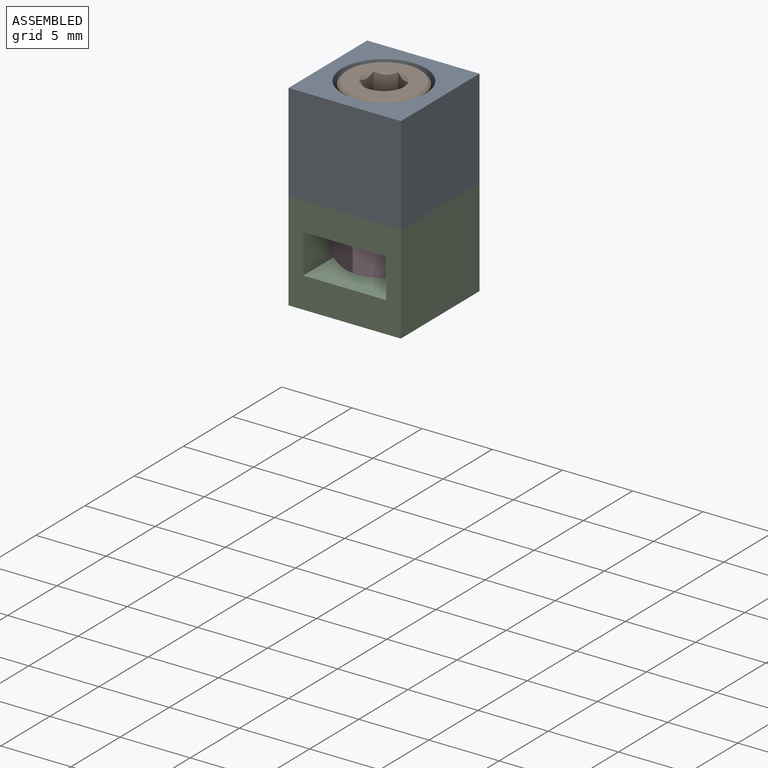
[diagram: assembled view]
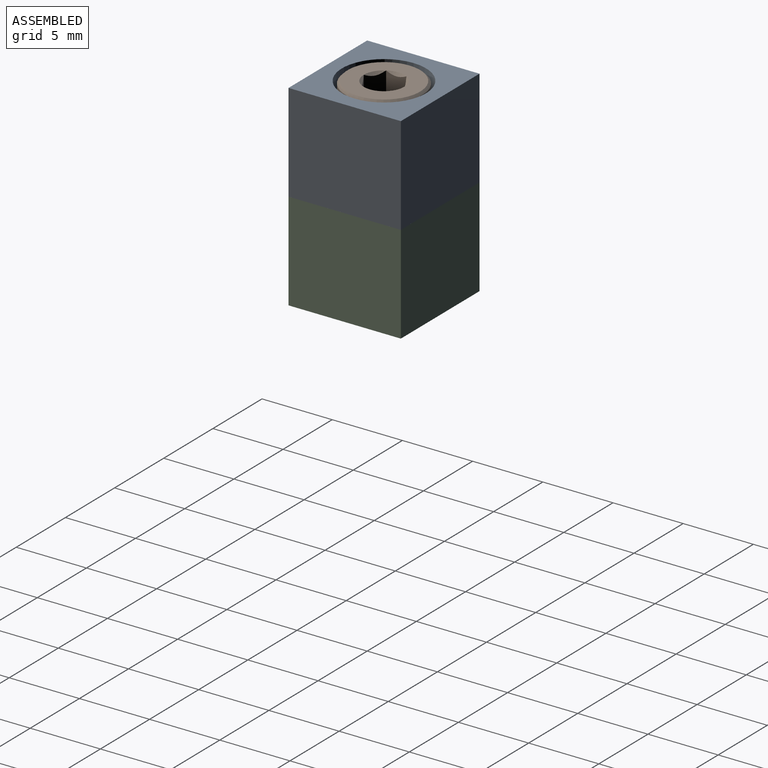
[diagram: assembled view, second angle]
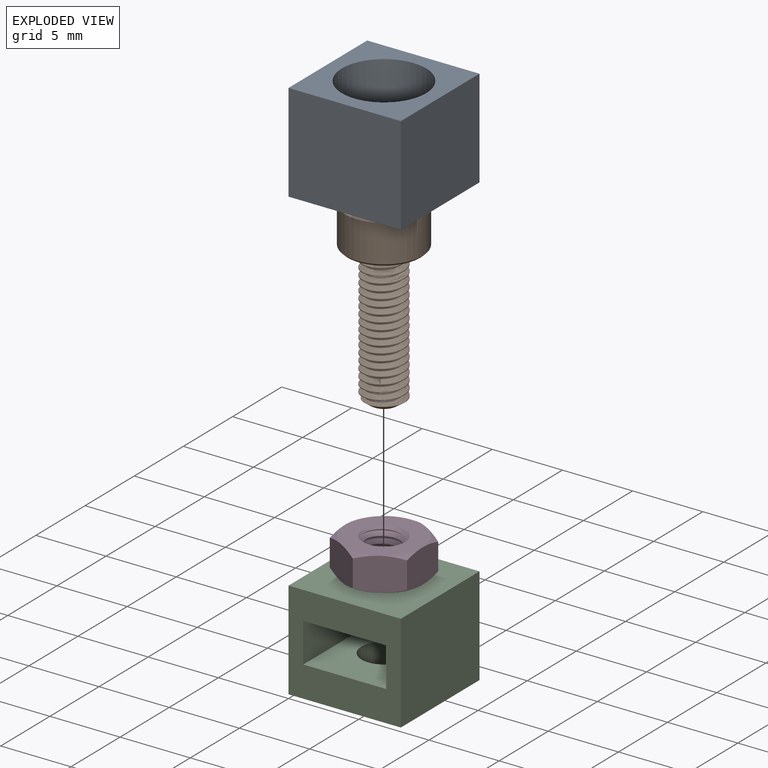
[diagram: exploded view]
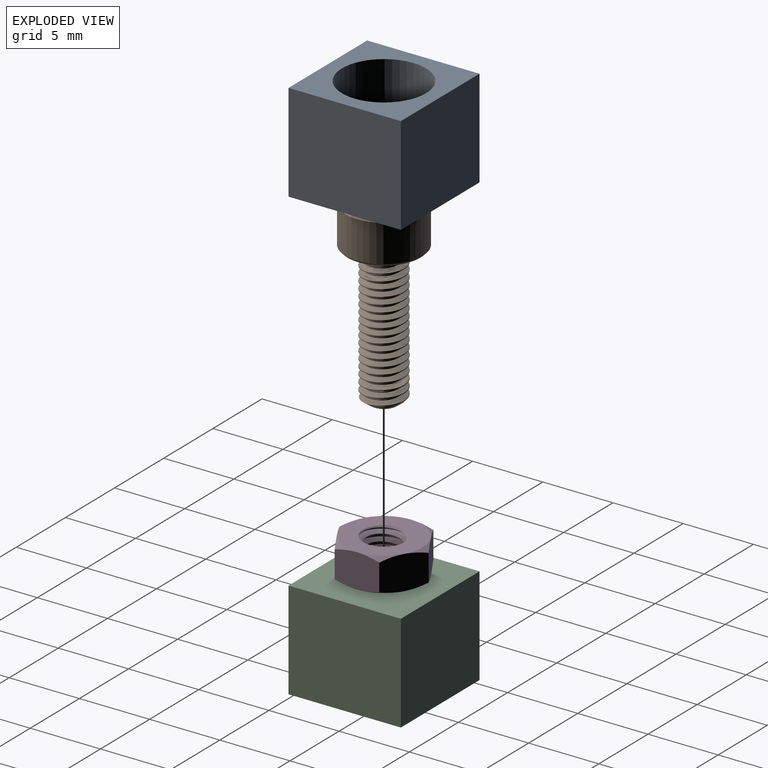
[diagram: exploded view, second angle]
ASSEMBLY  parts=4 mates=3
PART A: 9 faces, bbox 8x8x7 mm
  f0: cylinder r=1.6mm len=4mm, axis (0,0,1), area 40.2mm2, adj f6,f8
  f1: plane 8x7mm, normal (-1,0,0), area 56mm2, adj f2,f4,f5,f6
  f2: plane 8x7mm, normal (0,-1,0), area 56mm2, adj f1,f3,f5,f6
  f3: plane 8x7mm, normal (1,0,0), area 56mm2, adj f2,f4,f5,f6
  f4: plane 8x7mm, normal (0,1,0), area 56mm2, adj f1,f3,f5,f6
  f5: plane 8x8mm, normal (0,0,1), area 35.7mm2, adj f1,f2,f3,f4,f7
  f6: plane 8x8mm, normal (0,0,-1), area 56mm2, adj f0,f1,f2,f3,f4
  f7: cylinder r=3mm len=6mm, axis (0,0,1), area 56.5mm2, adj f5,f8
  f8: plane 6x6mm, normal (0,0,1), area 20.2mm2, adj f0,f7
PART B: 44 faces, bbox 6x6x13.6 mm
  f0: cone r=1.5mm half-angle=67.5deg, axis (0,0,-1), area 1.5mm2, adj f6,f26,f27,f28
  f1: cone r=2.75mm half-angle=45deg, axis (0,0,-1), area 3.9mm2, adj f4,f31
  f2: cone r=2.58mm half-angle=45deg, axis (0,0,1), area 3.9mm2, adj f4,f30
  f3: cone r=1.44mm half-angle=45deg, axis (0,0,-1), area 0.2mm2, adj f30,f42
  f4: cylinder r=2.75mm len=5.5mm, axis (0,0,1), area 46.1mm2, adj f1,f2
  f5: cone r=0.92mm half-angle=55deg, axis (0,0,-1), area 3.7mm2, adj f6,f7,f27,f28,f29
  f6: cylinder r=1.18mm len=9.56mm, axis (0,0,-1), area 8.8mm2, adj f0,f5,f27,f28
  f7: cylinder r=1.5mm len=3mm, axis (0,0,1), area 0.3mm2, adj f5,f8,f27,f28
  f8: cylinder r=1.5mm len=3mm, axis (0,0,1), area 0.6mm2, adj f7,f9,f27,f28
  f9: cylinder r=1.5mm len=3mm, axis (0,0,1), area 0.6mm2, adj f8,f10,f27,f28
  f10: cylinder r=1.5mm len=3mm, axis (0,0,1), area 0.6mm2, adj f9,f11,f27,f28
  f11: cylinder r=1.5mm len=3mm, axis (0,0,1), area 0.6mm2, adj f10,f12,f27,f28
  f12: cylinder r=1.5mm len=3mm, axis (0,0,1), area 0.6mm2, adj f11,f13,f27,f28
  f13: cylinder r=1.5mm len=3mm, axis (0,0,1), area 0.6mm2, adj f12,f14,f27,f28
  f14: cylinder r=1.5mm len=3mm, axis (0,0,1), area 0.6mm2, adj f13,f15,f27,f28
  f15: cylinder r=1.5mm len=3mm, axis (0,0,1), area 0.6mm2, adj f14,f16,f27,f28
  f16: cylinder r=1.5mm len=3mm, axis (0,0,1), area 0.6mm2, adj f15,f17,f27,f28
  f17: cylinder r=1.5mm len=3mm, axis (0,0,1), area 0.6mm2, adj f16,f18,f27,f28
  f18: cylinder r=1.5mm len=3mm, axis (0,0,1), area 0.6mm2, adj f17,f19,f27,f28
  f19: cylinder r=1.5mm len=3mm, axis (0,0,1), area 0.6mm2, adj f18,f20,f27,f28
  f20: cylinder r=1.5mm len=3mm, axis (0,0,1), area 0.6mm2, adj f19,f21,f27,f28
  f21: cylinder r=1.5mm len=3mm, axis (0,0,1), area 0.6mm2, adj f20,f22,f27,f28
  f22: cylinder r=1.5mm len=3mm, axis (0,0,1), area 0.6mm2, adj f21,f23,f27,f28
  f23: cylinder r=1.5mm len=3mm, axis (0,0,1), area 0.6mm2, adj f22,f24,f27,f28
  f24: cylinder r=1.5mm len=3mm, axis (0,0,1), area 0.6mm2, adj f23,f25,f27,f28
  f25: cylinder r=1.5mm len=3mm, axis (0,0,1), area 0.6mm2, adj f24,f26,f27,f28
  f26: cylinder r=1.5mm len=3mm, axis (0,0,1), area 1.4mm2, adj f0,f25,f27,f28,f31
  f27: bspline ~10.07x3mm, area 60.1mm2, adj f0,f5,f6,f7,f8,f9,f10,f11
  f28: bspline ~9.86x3.46mm, area 60.1mm2, adj f0,f5,f6,f7,f8,f9,f10,f11
  f29: plane 1.84x1.84mm, normal (0,0,1), area 2.7mm2, adj f5
  f30: plane 5.64x5.64mm, normal (0,0,-1), area 14.4mm2, adj f2,f3,f32,f33,f34,f35,f36
  f31: plane 5.17x5.17mm, normal (0,0,1), area 13.9mm2, adj f1,f26
  f32: cone r=1.44mm half-angle=45deg, axis (0,0,-1), area 0mm2, adj f30,f38
  f33: cone r=1.44mm half-angle=45deg, axis (0,0,-1), area 0mm2, adj f30,f39
  f34: cone r=1.44mm half-angle=45deg, axis (0,0,-1), area 0mm2, adj f30,f40
  f35: cone r=1.44mm half-angle=45deg, axis (0,0,-1), area 0mm2, adj f30,f41
  f36: cone r=1.44mm half-angle=45deg, axis (0,0,-1), area 0mm2, adj f30,f43
  f37: plane 2.89x2.5mm, normal (0,0,-1), area 5.4mm2, adj f38,f39,f40,f41,f42,f43
  f38: plane 2.42x1.8mm, normal (-0.5,-0.87,0), area 2.5mm2, adj f32,f37,f39,f43
  f39: plane 2.42x1.99mm, normal (-1,0,0), area 2.5mm2, adj f33,f37,f38,f40
  f40: plane 2.42x1.8mm, normal (-0.5,0.87,0), area 2.5mm2, adj f34,f37,f39,f41
  f41: plane 2.42x1.8mm, normal (0.5,0.87,0), area 2.5mm2, adj f35,f37,f40,f42
  f42: plane 2.02x1.58mm, normal (1,0,0), area 2.5mm2, adj f3,f37,f41,f43
  f43: plane 2.42x1.8mm, normal (0.5,-0.87,0), area 2.5mm2, adj f36,f37,f38,f42
PART C: 14 faces, bbox 8x8x7 mm
  f0: plane 8x7mm, normal (0,-1,0), area 39.5mm2, adj f1,f2,f4,f5,f6,f7,f8,f9
  f1: plane 8x7mm, normal (-1,0,0), area 56mm2, adj f0,f3,f4,f5
  f2: plane 8x7mm, normal (1,0,0), area 56mm2, adj f0,f3,f4,f5
  f3: plane 8x7mm, normal (0,1,0), area 56mm2, adj f1,f2,f4,f5
  f4: plane 8x8mm, normal (0,0,1), area 56mm2, adj f0,f1,f2,f3,f12
  f5: plane 8x8mm, normal (0,0,-1), area 56mm2, adj f0,f1,f2,f3,f13
  f6: plane 5.45x2.8mm, normal (-1,0,0), area 15.2mm2, adj f0,f7,f9,f11
  f7: plane 7.15x5.9mm, normal (0,0,-1), area 29.1mm2, adj f0,f6,f8,f10,f11,f12
  f8: plane 5.45x2.8mm, normal (1,0,0), area 15.2mm2, adj f0,f7,f9,f10
  f9: plane 7.15x5.9mm, normal (0,0,1), area 29.1mm2, adj f0,f6,f8,f10,f11,f13
  f10: plane 2.95x2.8mm, normal (0.5,-0.87,0), area 9.5mm2, adj f7,f8,f9,f11
  f11: plane 2.95x2.8mm, normal (-0.5,-0.87,0), area 9.5mm2, adj f6,f7,f9,f10
  f12: cylinder r=1.6mm len=3.2mm, axis (0,0,1), area 20.1mm2, adj f4,f7
  f13: cylinder r=1.6mm len=3.2mm, axis (0,0,-1), area 22.1mm2, adj f5,f9
PART D: 27 faces, bbox 6.6x6.6x3 mm
  f0: cylinder r=1.5mm len=3mm, axis (0,0,-1), area 2.8mm2, adj f10,f11,f12,f13,f14
  f1: cylinder r=1.18mm len=2.35mm, axis (0,0,1), area 1.6mm2, adj f2,f3,f13,f14
  f2: cone r=1.5mm half-angle=45deg, axis (0,0,-1), area 2mm2, adj f1,f11,f13,f14
  f3: cone r=1.5mm half-angle=45deg, axis (0,0,1), area 2mm2, adj f1,f10,f12,f13,f14
  f4: plane 3.01x2.66mm, normal (-0.5,0.87,0), area 7.1mm2, adj f5,f9,f18,f19,f22,f23
  f5: plane 3.44x2.66mm, normal (-1,0,0), area 7.1mm2, adj f4,f6,f17,f18,f23,f24
  f6: plane 3.01x2.66mm, normal (-0.5,-0.87,0), area 7.1mm2, adj f5,f7,f16,f17,f24,f25
  f7: plane 3.01x2.66mm, normal (0.5,-0.87,0), area 7.1mm2, adj f6,f8,f15,f16,f25,f26
  f8: plane 3.44x2.66mm, normal (1,0,0), area 7.1mm2, adj f7,f9,f15,f20,f21,f26
  f9: plane 3.01x2.66mm, normal (0.5,0.87,0), area 7.1mm2, adj f4,f8,f19,f20,f21,f22
  f10: plane 5.5x5.5mm, normal (0,0,1), area 16.7mm2, adj f0,f3,f15,f16,f17,f18,f19,f20
  f11: plane 5.5x5.5mm, normal (0,0,-1), area 16.7mm2, adj f0,f2,f21,f22,f23,f24,f25,f26
  f12: plane 0x0mm, normal (0.5,0.87,0), area 0mm2, adj f0,f3,f13
  f13: bspline ~3x3mm, area 13.2mm2, adj f0,f1,f2,f3,f12
  f14: bspline ~3x3mm, area 13.2mm2, adj f0,f1,f2,f3
  f15: cone r=2.75mm half-angle=60deg, axis (0,0,-1), area 0.7mm2, adj f7,f8,f10
  f16: cone r=2.75mm half-angle=60deg, axis (0,0,-1), area 0.7mm2, adj f6,f7,f10
  f17: cone r=2.75mm half-angle=60deg, axis (0,0,-1), area 0.7mm2, adj f5,f6,f10
  f18: cone r=2.75mm half-angle=60deg, axis (0,0,-1), area 0.7mm2, adj f4,f5,f10
  f19: cone r=2.75mm half-angle=60deg, axis (0,0,-1), area 0.7mm2, adj f4,f9,f10
  f20: cone r=2.75mm half-angle=60deg, axis (0,0,-1), area 0.7mm2, adj f8,f9,f10
  f21: cone r=2.75mm half-angle=60deg, axis (0,0,1), area 0.7mm2, adj f8,f9,f11
  f22: cone r=2.75mm half-angle=60deg, axis (0,0,1), area 0.7mm2, adj f4,f9,f11
  f23: cone r=2.75mm half-angle=60deg, axis (0,0,1), area 0.7mm2, adj f4,f5,f11
  f24: cone r=2.75mm half-angle=60deg, axis (0,0,1), area 0.7mm2, adj f5,f6,f11
  f25: cone r=2.75mm half-angle=60deg, axis (0,0,1), area 0.7mm2, adj f6,f7,f11
  f26: cone r=2.75mm half-angle=60deg, axis (0,0,1), area 0.7mm2, adj f7,f8,f11
PLACE A t=(0,0,7)mm
PLACE B rot(axis=(0,1,0),180deg) t=(4,4,1)mm
PLACE C at identity
PLACE D t=(4,4,3.8)mm
MATE fastened A.f0 <-> C.f12  axis (0,0,1) through (4,4,7)mm
MATE fastened D.f0 <-> C.f12  axis (0,0,1) through (4,4,5)mm
MATE fastened B.f1 <-> A.f0  axis (0,0,-1) through (4,4,11)mm
